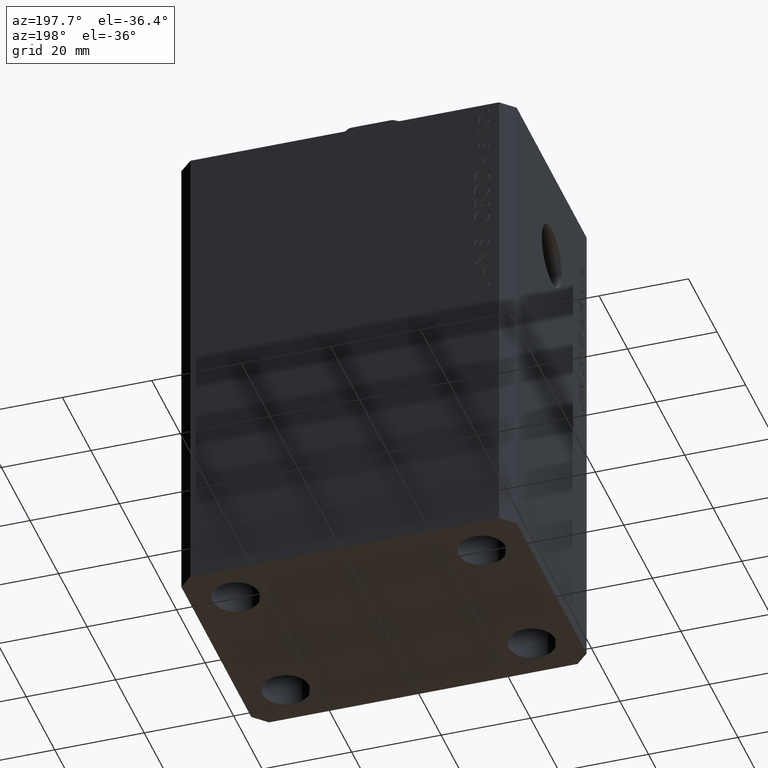
[diagram: clean part render]
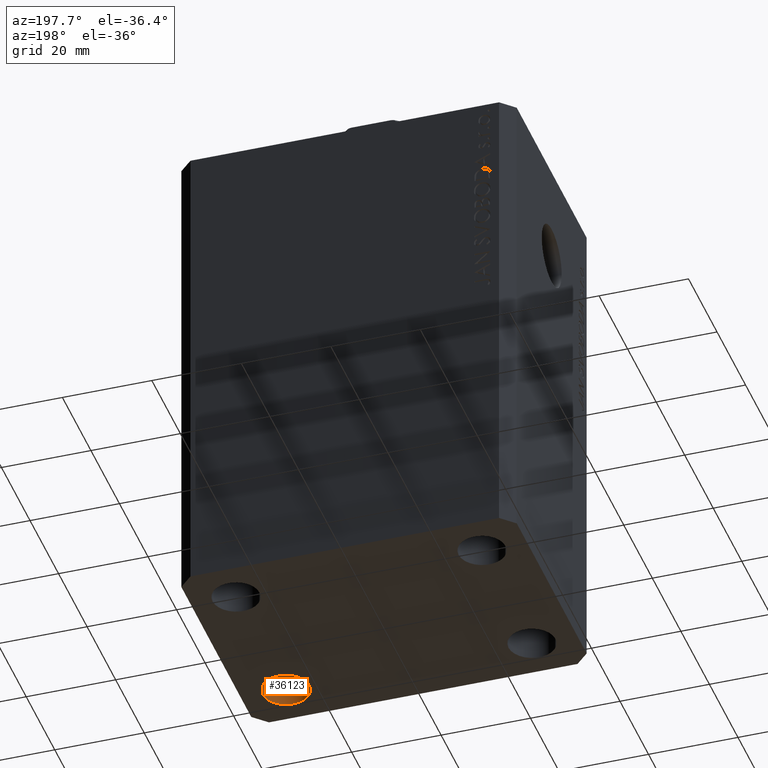
[diagram: same view with one face highlighted and labeled with its STEP entity id]
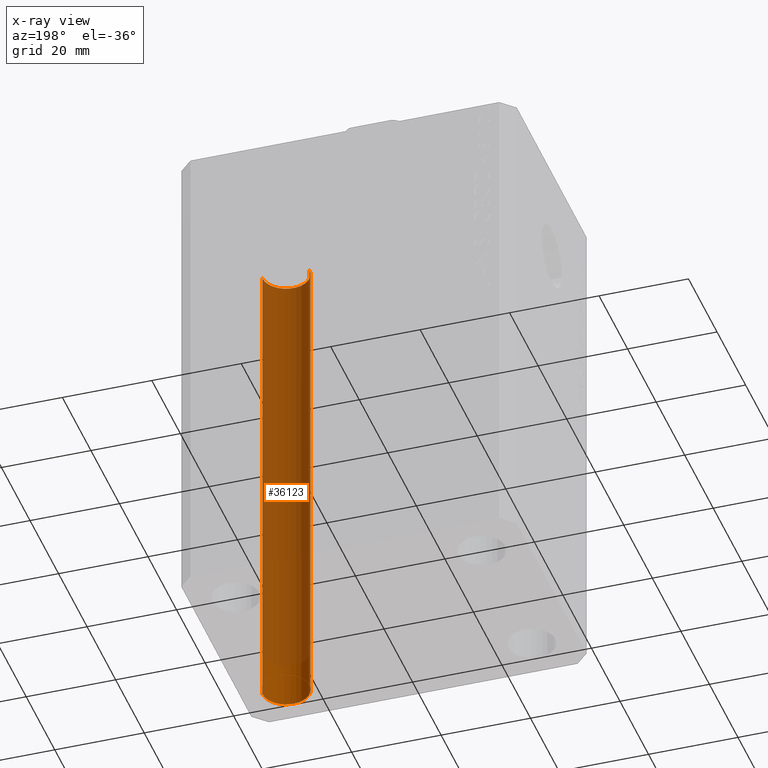
[diagram: x-ray of the same camera — body ghosted, the highlighted face saturated]
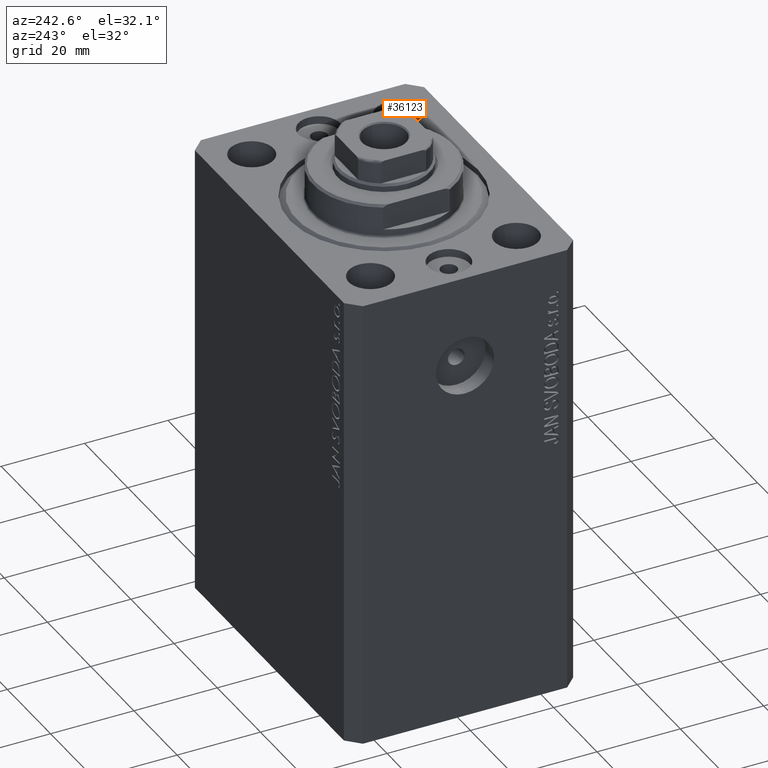
[diagram: same view with one face highlighted and labeled with its STEP entity id]
A machine part, auxiliary view. The second image highlights one B-rep face of the part: STEP entity #36123.
The next image is the same camera in x-ray: the body ghosted, the highlighted face saturated — about 91% of this face is hidden behind the body in this view.
A second angle (auxiliary view) of the same face is appended — the face is thin or edge-on in the first view.
In plain terms, the highlighted cylindrical surface (edge-blend (fillet) strip) has radius 5.25 mm, axis along (0, 0, 1).
Its self-contained STEP definition (entity closure, byte-faithful):
#843 = CARTESIAN_POINT ( 'NONE',  ( 22.24999999999999289, -17.50000000000000000, 0.000000000000000000 ) ) ;
#2362 = CARTESIAN_POINT ( 'NONE',  ( 32.74999999999999289, -17.50000000000000000, -124.8492424049175042 ) ) ;
#3154 = ORIENTED_EDGE ( 'NONE', *, *, #5367, .T. ) ;
#4768 = VERTEX_POINT ( 'NONE', #843 ) ;
#4937 = VERTEX_POINT ( 'NONE', #39719 ) ;
#5367 = EDGE_CURVE ( 'NONE', #30853, #4768, #10410, .T. ) ;
#5517 = DIRECTION ( 'NONE',  ( 1.000000000000000000, 0.000000000000000000, 0.000000000000000000 ) ) ;
#5989 = EDGE_CURVE ( 'NONE', #4937, #30853, #35641, .T. ) ;
#6561 = DIRECTION ( 'NONE',  ( 1.000000000000000000, 0.000000000000000000, 0.000000000000000000 ) ) ;
#6980 = CIRCLE ( 'NONE', #43599, 5.250000000000000888 ) ;
#9327 = DIRECTION ( 'NONE',  ( 1.000000000000000000, 0.000000000000000000, 0.000000000000000000 ) ) ;
#9710 = CYLINDRICAL_SURFACE ( 'NONE', #28365, 5.250000000000000888 ) ;
#10410 = LINE ( 'NONE', #23899, #21295 ) ;
#10502 = VERTEX_POINT ( 'NONE', #16046 ) ;
#11753 = EDGE_CURVE ( 'NONE', #4768, #10502, #6980, .T. ) ;
#16046 = CARTESIAN_POINT ( 'NONE',  ( 32.74999999999999289, -17.50000000000000000, 0.000000000000000000 ) ) ;
#16454 = CARTESIAN_POINT ( 'NONE',  ( 22.24999999999999289, -17.50000000000000000, -110.0000000000000000 ) ) ;
#16669 = DIRECTION ( 'NONE',  ( -0.000000000000000000, -0.000000000000000000, 1.000000000000000000 ) ) ;
#17522 = CARTESIAN_POINT ( 'NONE',  ( 27.49999999999999289, -17.50000000000000000, 0.000000000000000000 ) ) ;
#17701 = EDGE_CURVE ( 'NONE', #4937, #10502, #32473, .T. ) ;
#18337 = EDGE_LOOP ( 'NONE', ( #19787, #3154, #19402, #28728 ) ) ;
#19402 = ORIENTED_EDGE ( 'NONE', *, *, #11753, .T. ) ;
#19787 = ORIENTED_EDGE ( 'NONE', *, *, #5989, .T. ) ;
#21295 = VECTOR ( 'NONE', #41660, 1000.000000000000000 ) ;
#22002 = AXIS2_PLACEMENT_3D ( 'NONE', #22370, #36305, #5517 ) ;
#22370 = CARTESIAN_POINT ( 'NONE',  ( 27.49999999999999289, -17.50000000000000000, -110.0000000000000000 ) ) ;
#23899 = CARTESIAN_POINT ( 'NONE',  ( 22.24999999999999289, -17.50000000000000000, -124.8492424049175042 ) ) ;
#24437 = VECTOR ( 'NONE', #29778, 1000.000000000000000 ) ;
#28365 = AXIS2_PLACEMENT_3D ( 'NONE', #29964, #16669, #6561 ) ;
#28728 = ORIENTED_EDGE ( 'NONE', *, *, #17701, .F. ) ;
#29769 = DIRECTION ( 'NONE',  ( 0.000000000000000000, 0.000000000000000000, 1.000000000000000000 ) ) ;
#29778 = DIRECTION ( 'NONE',  ( -0.000000000000000000, -0.000000000000000000, 1.000000000000000000 ) ) ;
#29964 = CARTESIAN_POINT ( 'NONE',  ( 27.49999999999999289, -17.50000000000000000, -124.8492424049175042 ) ) ;
#30853 = VERTEX_POINT ( 'NONE', #16454 ) ;
#32473 = LINE ( 'NONE', #2362, #24437 ) ;
#35641 = CIRCLE ( 'NONE', #22002, 5.250000000000000888 ) ;
#36123 = ADVANCED_FACE ( 'NONE', ( #36716 ), #9710, .F. ) ;
#36305 = DIRECTION ( 'NONE',  ( -0.000000000000000000, -0.000000000000000000, -1.000000000000000000 ) ) ;
#36716 = FACE_OUTER_BOUND ( 'NONE', #18337, .T. ) ;
#39719 = CARTESIAN_POINT ( 'NONE',  ( 32.74999999999999289, -17.50000000000000000, -110.0000000000000000 ) ) ;
#41660 = DIRECTION ( 'NONE',  ( -0.000000000000000000, -0.000000000000000000, 1.000000000000000000 ) ) ;
#43599 = AXIS2_PLACEMENT_3D ( 'NONE', #17522, #29769, #9327 ) ;